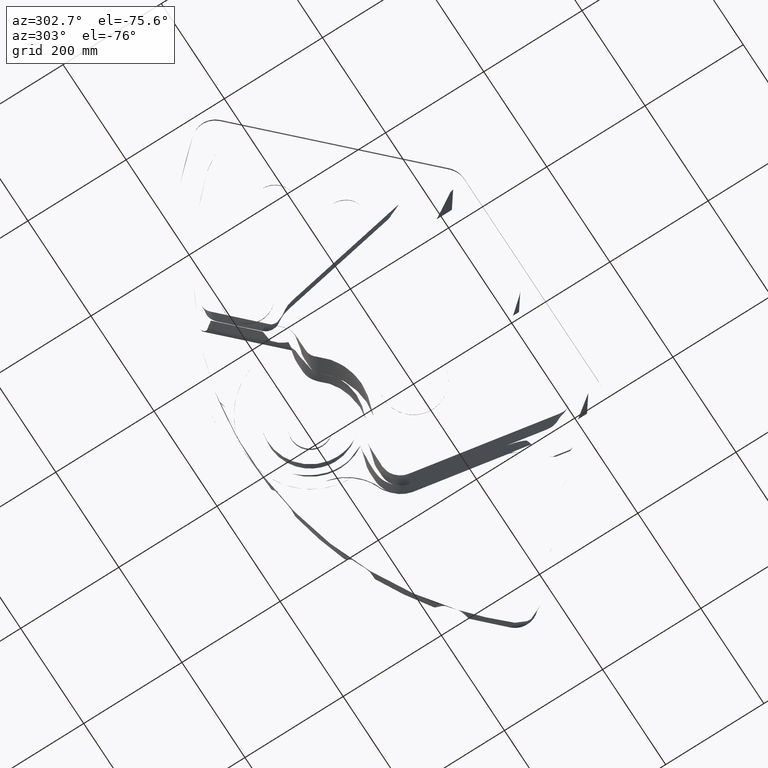
[diagram: clean part render]
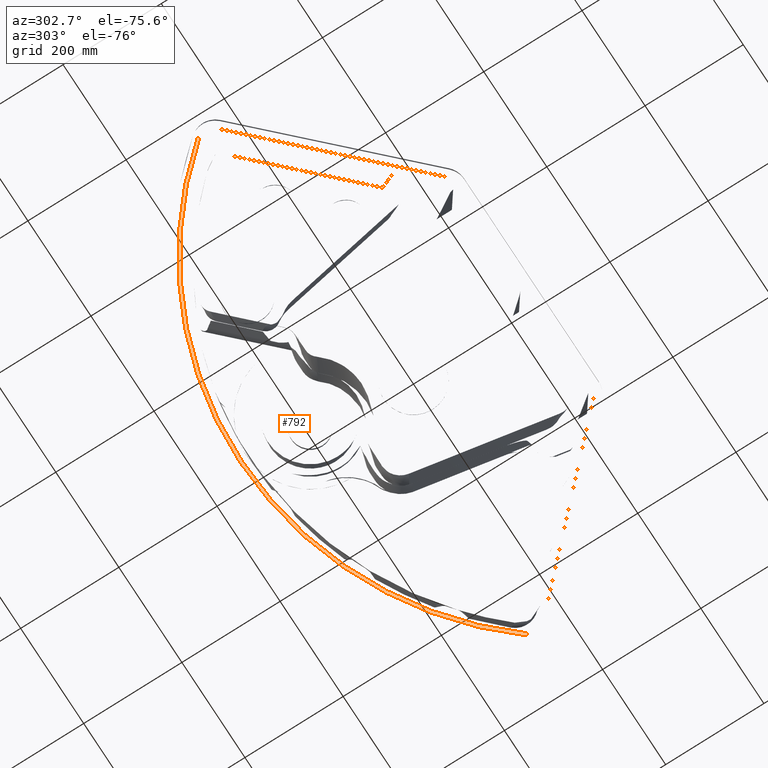
[diagram: same view with one face highlighted and labeled with its STEP entity id]
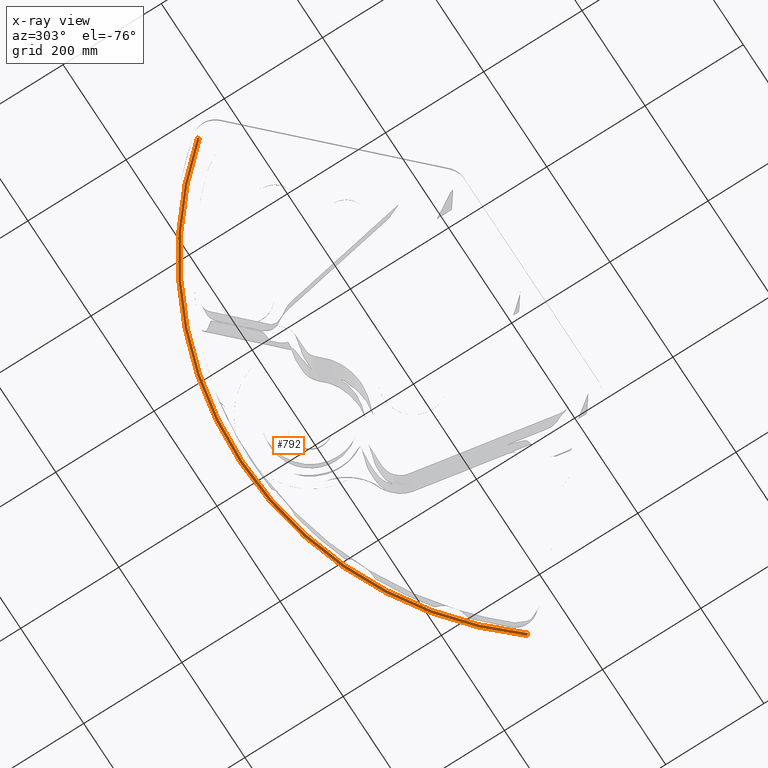
[diagram: x-ray of the same camera — body ghosted, the highlighted face saturated]
A machine part, auxiliary view. The second image highlights one B-rep face of the part: STEP entity #792.
The next image is the same camera in x-ray: the body ghosted, the highlighted face saturated — about 0% of this face is hidden behind the body in this view.
In plain terms, the highlighted face is a SurfaceOfRevolution surface.
Its self-contained STEP definition (entity closure, byte-faithful):
#84=SURFACE_OF_REVOLUTION('',#7522,#86);
#86=AXIS1_PLACEMENT('',#10125,#8958);
#792=ADVANCED_FACE('',(#1366),#84,.F.);
#1366=FACE_OUTER_BOUND('',#1884,.T.);
#1884=EDGE_LOOP('',(#2621,#2622,#2623,#2624));
#2406=CIRCLE('',#8751,670.958173178856);
#2410=CIRCLE('',#8757,675.536851067352);
#2621=ORIENTED_EDGE('',*,*,#6079,.F.);
#2622=ORIENTED_EDGE('',*,*,#6039,.F.);
#2623=ORIENTED_EDGE('',*,*,#6080,.F.);
#2624=ORIENTED_EDGE('',*,*,#6081,.T.);
#5080=VERTEX_POINT('',#9801);
#5081=VERTEX_POINT('',#9803);
#5114=VERTEX_POINT('',#10101);
#5115=VERTEX_POINT('',#10109);
#6039=EDGE_CURVE('',#5080,#5081,#2406,.T.);
#6079=EDGE_CURVE('',#5081,#5114,#7520,.T.);
#6080=EDGE_CURVE('',#5115,#5080,#7521,.T.);
#6081=EDGE_CURVE('',#5115,#5114,#2410,.T.);
#7520=B_SPLINE_CURVE_WITH_KNOTS('',3,(#10094,#10095,#10096,#10097,#10098,
#10099,#10100),.UNSPECIFIED.,.F.,.F.,(4,1,1,1,4),(0.,0.25,0.5,0.75,1.),.UNSPECIFIED.);
#7521=B_SPLINE_CURVE_WITH_KNOTS('',3,(#10102,#10103,#10104,#10105,#10106,
#10107,#10108),.UNSPECIFIED.,.F.,.F.,(4,1,1,1,4),(0.,0.25,0.5,0.75,1.),.UNSPECIFIED.);
#7522=B_SPLINE_CURVE_WITH_KNOTS('',3,(#10111,#10112,#10113,#10114,#10115,
#10116,#10117,#10118,#10119,#10120,#10121,#10122,#10123,#10124),.UNSPECIFIED.,
 .F.,.F.,(4,2,2,2,2,2,4),(0.,0.250000000000004,0.375000000000005,0.500000000000007,
0.625000000000009,0.75000000000001,1.),.UNSPECIFIED.);
#8751=AXIS2_PLACEMENT_3D('',#9802,#8932,#8933);
#8757=AXIS2_PLACEMENT_3D('',#10110,#8956,#8957);
#8932=DIRECTION('',(0.,-1.18638324796106E-015,1.));
#8933=DIRECTION('',(0.,-1.,-1.18413245975258E-015));
#8956=DIRECTION('',(0.,-1.18638324796106E-015,1.));
#8957=DIRECTION('',(0.,-1.,-1.1863782777135E-015));
#8958=DIRECTION('',(0.,-1.18638324796106E-015,1.));
#9801=CARTESIAN_POINT('',(520.303972788161,101.157158764653,-19.5088600000012));
#9802=CARTESIAN_POINT('',(0.,-322.480240500761,-19.5088600000018));
#9803=CARTESIAN_POINT('',(-520.303972788161,101.157158764653,-19.5088600000012));
#10094=CARTESIAN_POINT('',(-520.303972788157,101.157158764659,-19.5088600000013));
#10095=CARTESIAN_POINT('',(-520.454218942023,101.279490888191,-19.9504502248056));
#10096=CARTESIAN_POINT('',(-520.854431507061,101.605348500421,-20.7770686048501));
#10097=CARTESIAN_POINT('',(-521.704216551884,102.297253127623,-21.7447288610163));
#10098=CARTESIAN_POINT('',(-522.732745913341,103.13469340589,-22.3594739632167));
#10099=CARTESIAN_POINT('',(-523.480624933135,103.743624991042,-22.4999843658892));
#10100=CARTESIAN_POINT('',(-523.854573094902,104.048097828069,-22.4999800000013));
#10101=CARTESIAN_POINT('',(-523.854573094901,104.048097828069,-22.4999800000013));
#10102=CARTESIAN_POINT('',(523.854573094902,104.048097828069,-22.4999800000013));
#10103=CARTESIAN_POINT('',(523.480624933135,103.743624991042,-22.4999843658892));
#10104=CARTESIAN_POINT('',(522.732745913369,103.134693405914,-22.3594739632245));
#10105=CARTESIAN_POINT('',(521.704216551902,102.297253127637,-21.7447288610338));
#10106=CARTESIAN_POINT('',(520.854431507067,101.605348500426,-20.7770686048625));
#10107=CARTESIAN_POINT('',(520.454218942024,101.279490888192,-19.9504502248081));
#10108=CARTESIAN_POINT('',(520.303972788157,101.157158764659,-19.5088600000013));
#10109=CARTESIAN_POINT('',(523.854573094902,104.048097828069,-22.4999800000013));
#10110=CARTESIAN_POINT('',(0.,-322.480240500761,-22.4999800000018));
#10111=CARTESIAN_POINT('',(4.00746102968697E-012,348.477932678095,-19.508860000001));
#10112=CARTESIAN_POINT('',(4.00746102968697E-012,348.673350793498,-19.9542521956281));
#10113=CARTESIAN_POINT('',(4.00746102968697E-012,348.927651407476,-20.3608854603029));
#10114=CARTESIAN_POINT('',(4.00746102968697E-012,349.395572753801,-20.9139168955153));
#10115=CARTESIAN_POINT('',(4.00746102968697E-012,349.566485934673,-21.0883870008065));
#10116=CARTESIAN_POINT('',(4.00746102968697E-012,349.92679209007,-21.4066273518929));
#10117=CARTESIAN_POINT('',(4.00746102968697E-012,350.117424850501,-21.5519987184905));
#10118=CARTESIAN_POINT('',(4.00746102968697E-012,350.519647822416,-21.8152463454043));
#10119=CARTESIAN_POINT('',(4.00746102968697E-012,350.733109189616,-21.933896072581));
#10120=CARTESIAN_POINT('',(4.00746102968697E-012,351.171221897092,-22.1371793926271));
#10121=CARTESIAN_POINT('',(4.00746102968697E-012,351.395691204091,-22.2221470469785));
#10122=CARTESIAN_POINT('',(4.00746102968697E-012,352.085000965631,-22.4280661436298));
#10123=CARTESIAN_POINT('',(4.00746102968697E-012,352.570233564037,-22.499978017291));
#10124=CARTESIAN_POINT('',(4.00746102968697E-012,353.056610566592,-22.499980000001));
#10125=CARTESIAN_POINT('',(0.,-322.480240500761,-10.5));